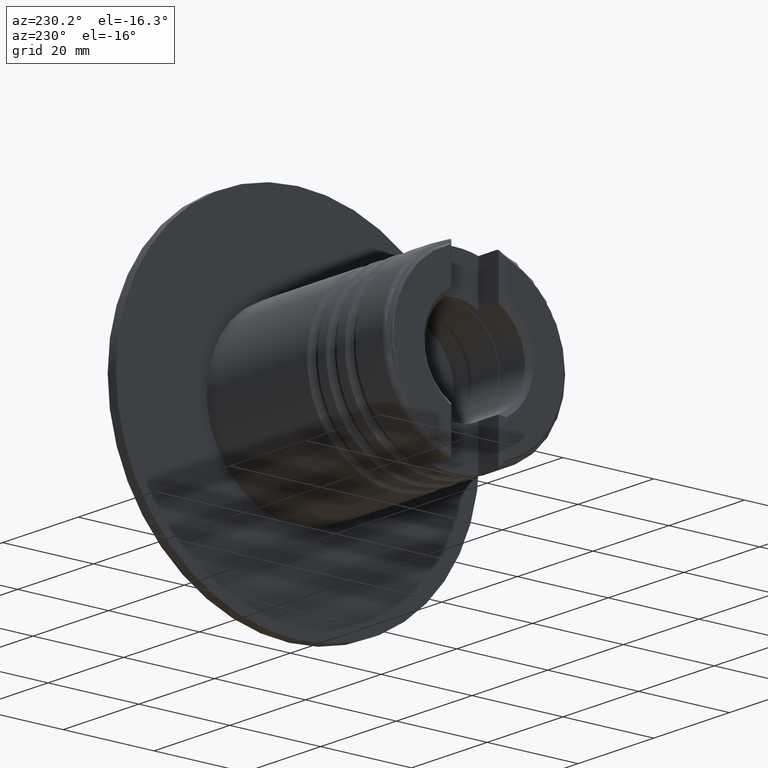
[diagram: clean part render]
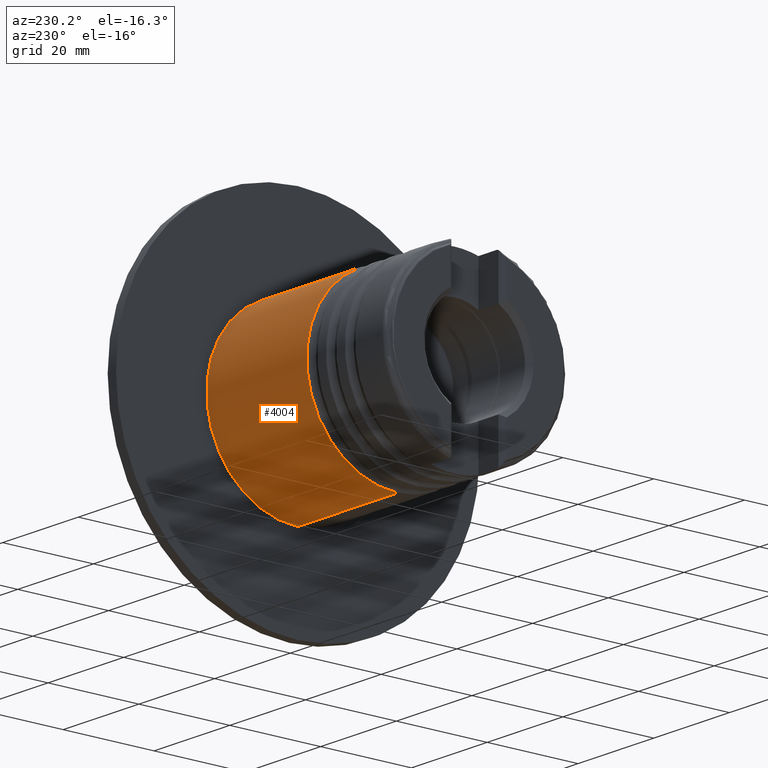
[diagram: same view with one face highlighted and labeled with its STEP entity id]
A machine part, auxiliary view. The second image highlights one B-rep face of the part: STEP entity #4004.
In plain terms, the highlighted cylindrical surface (partial cylindrical patch) has radius 20 mm, axis along (1, 0, 0).
Its self-contained STEP definition (entity closure, byte-faithful):
#338 = DIRECTION ( 'NONE',  ( 0.0000000000000000000, 0.0000000000000000000, 1.000000000000000000 ) ) ;
#385 = EDGE_LOOP ( 'NONE', ( #4116, #1952, #2804, #2851 ) ) ;
#522 = DIRECTION ( 'NONE',  ( 1.000000000000000000, -0.0000000000000000000, -0.0000000000000000000 ) ) ;
#685 = DIRECTION ( 'NONE',  ( 0.0000000000000000000, 0.0000000000000000000, -1.000000000000000000 ) ) ;
#775 = DIRECTION ( 'NONE',  ( 0.0000000000000000000, 0.0000000000000000000, -1.000000000000000000 ) ) ;
#807 = CYLINDRICAL_SURFACE ( 'NONE', #4885, 19.99999999999999645 ) ;
#854 = CARTESIAN_POINT ( 'NONE',  ( -28.33993941201282141, 2.449293598294706513E-15, 20.00000000000000000 ) ) ;
#860 = AXIS2_PLACEMENT_3D ( 'NONE', #3512, #1843, #338 ) ;
#967 = CARTESIAN_POINT ( 'NONE',  ( 0.0000000000000000000, 0.0000000000000000000, -19.99999999999999645 ) ) ;
#1096 = CARTESIAN_POINT ( 'NONE',  ( -1.899999999999999023, 0.0000000000000000000, 0.0000000000000000000 ) ) ;
#1164 = EDGE_CURVE ( 'NONE', #2568, #3090, #4823, .T. ) ;
#1627 = EDGE_CURVE ( 'NONE', #2177, #3090, #3105, .T. ) ;
#1720 = LINE ( 'NONE', #967, #1780 ) ;
#1780 = VECTOR ( 'NONE', #522, 1000.000000000000000 ) ;
#1843 = DIRECTION ( 'NONE',  ( -1.000000000000000000, -0.0000000000000000000, -0.0000000000000000000 ) ) ;
#1845 = VERTEX_POINT ( 'NONE', #4469 ) ;
#1930 = CARTESIAN_POINT ( 'NONE',  ( 0.0000000000000000000, 2.449293598294706119E-15, 19.99999999999999645 ) ) ;
#1952 = ORIENTED_EDGE ( 'NONE', *, *, #1164, .T. ) ;
#2177 = VERTEX_POINT ( 'NONE', #3492 ) ;
#2284 = DIRECTION ( 'NONE',  ( 1.000000000000000000, -0.0000000000000000000, -0.0000000000000000000 ) ) ;
#2568 = VERTEX_POINT ( 'NONE', #854 ) ;
#2758 = EDGE_CURVE ( 'NONE', #2568, #1845, #3305, .T. ) ;
#2804 = ORIENTED_EDGE ( 'NONE', *, *, #1627, .F. ) ;
#2851 = ORIENTED_EDGE ( 'NONE', *, *, #4790, .F. ) ;
#2925 = FACE_OUTER_BOUND ( 'NONE', #385, .T. ) ;
#3090 = VERTEX_POINT ( 'NONE', #3742 ) ;
#3105 = CIRCLE ( 'NONE', #3419, 20.00000000000000000 ) ;
#3110 = DIRECTION ( 'NONE',  ( 1.000000000000000000, -0.0000000000000000000, -0.0000000000000000000 ) ) ;
#3305 = CIRCLE ( 'NONE', #860, 20.00000000000000000 ) ;
#3419 = AXIS2_PLACEMENT_3D ( 'NONE', #1096, #2284, #685 ) ;
#3492 = CARTESIAN_POINT ( 'NONE',  ( -1.899999999999999023, 0.0000000000000000000, -20.00000000000000000 ) ) ;
#3512 = CARTESIAN_POINT ( 'NONE',  ( -28.33993941201282141, 0.0000000000000000000, 0.0000000000000000000 ) ) ;
#3516 = CARTESIAN_POINT ( 'NONE',  ( 0.0000000000000000000, 0.0000000000000000000, 0.0000000000000000000 ) ) ;
#3742 = CARTESIAN_POINT ( 'NONE',  ( -1.899999999999999023, 2.449293598294706513E-15, 20.00000000000000000 ) ) ;
#4004 = ADVANCED_FACE ( 'NONE', ( #2925 ), #807, .T. ) ;
#4116 = ORIENTED_EDGE ( 'NONE', *, *, #2758, .F. ) ;
#4469 = CARTESIAN_POINT ( 'NONE',  ( -28.33993941201282141, 0.0000000000000000000, -20.00000000000000000 ) ) ;
#4760 = DIRECTION ( 'NONE',  ( 1.000000000000000000, -0.0000000000000000000, -0.0000000000000000000 ) ) ;
#4790 = EDGE_CURVE ( 'NONE', #1845, #2177, #1720, .T. ) ;
#4823 = LINE ( 'NONE', #1930, #4992 ) ;
#4885 = AXIS2_PLACEMENT_3D ( 'NONE', #3516, #3110, #775 ) ;
#4992 = VECTOR ( 'NONE', #4760, 1000.000000000000000 ) ;